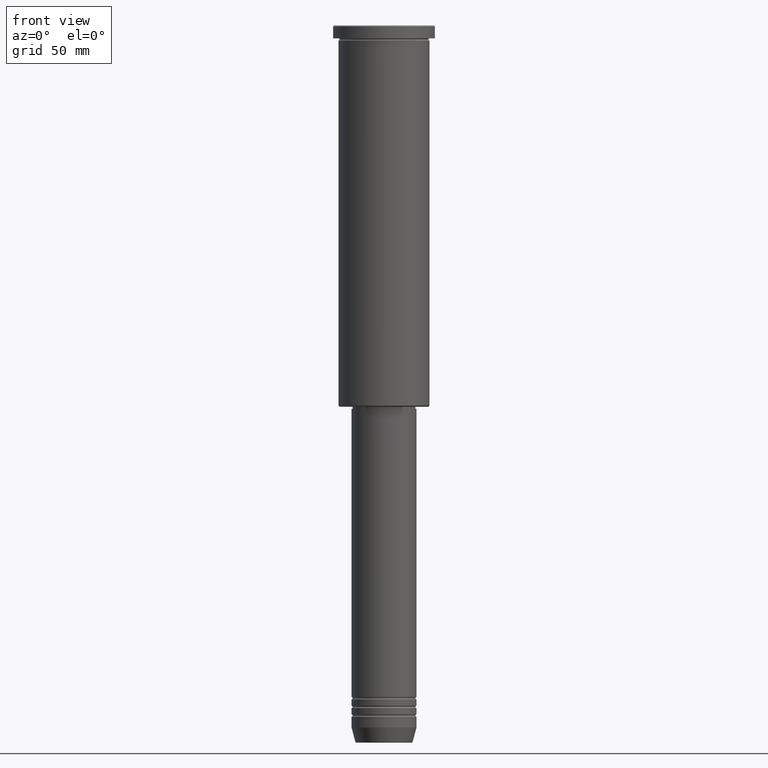
[diagram: clean part render]
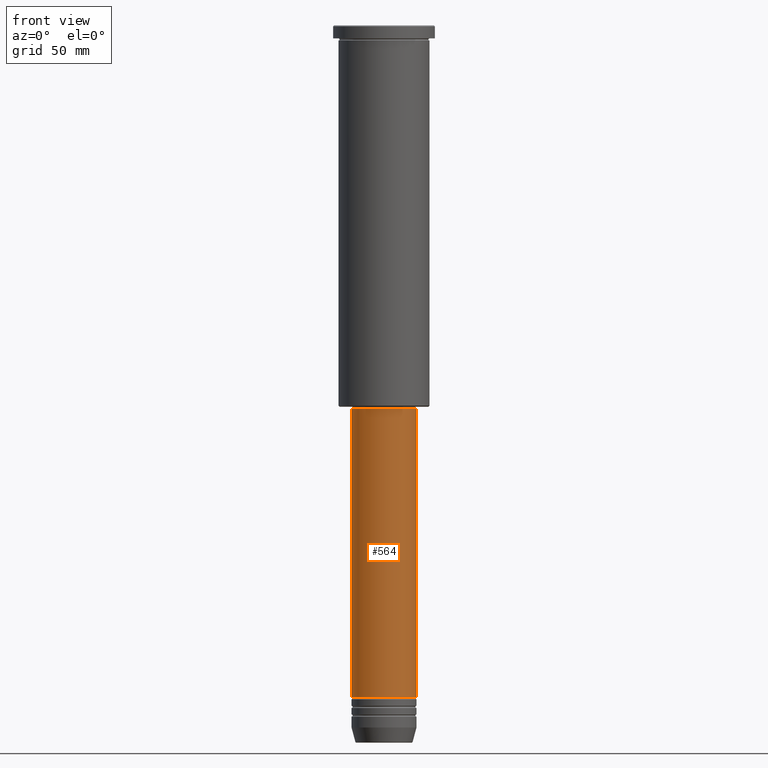
[diagram: same view with one face highlighted and labeled with its STEP entity id]
A machine part, front view. The second image highlights one B-rep face of the part: STEP entity #564.
In plain terms, the highlighted cylindrical surface (edge-blend (fillet) strip) has radius 15 mm, axis along (-0, -0, 1).
Its self-contained STEP definition (entity closure, byte-faithful):
#35 = FACE_OUTER_BOUND ( 'NONE', #1125, .T. ) ;
#64 = VERTEX_POINT ( 'NONE', #867 ) ;
#68 = CIRCLE ( 'NONE', #570, 15.00000000000000000 ) ;
#87 = EDGE_CURVE ( 'NONE', #1027, #64, #1171, .T. ) ;
#103 = EDGE_CURVE ( 'NONE', #692, #1027, #328, .T. ) ;
#116 = ORIENTED_EDGE ( 'NONE', *, *, #582, .T. ) ;
#123 = VECTOR ( 'NONE', #584, 1000.000000000000000 ) ;
#158 = CYLINDRICAL_SURFACE ( 'NONE', #203, 15.00000000000000000 ) ;
#203 = AXIS2_PLACEMENT_3D ( 'NONE', #1053, #398, #302 ) ;
#213 = CARTESIAN_POINT ( 'NONE',  ( 0.000000000000000000, 0.000000000000000000, -176.9999999999999432 ) ) ;
#214 = ORIENTED_EDGE ( 'NONE', *, *, #87, .F. ) ;
#229 = VECTOR ( 'NONE', #1054, 1000.000000000000000 ) ;
#247 = CARTESIAN_POINT ( 'NONE',  ( 0.000000000000000000, 0.000000000000000000, -309.9999999999999432 ) ) ;
#302 = DIRECTION ( 'NONE',  ( 1.000000000000000000, 0.000000000000000000, 0.000000000000000000 ) ) ;
#304 = CARTESIAN_POINT ( 'NONE',  ( 15.00000000000000000, 0.000000000000000000, 0.000000000000000000 ) ) ;
#328 = LINE ( 'NONE', #881, #229 ) ;
#338 = DIRECTION ( 'NONE',  ( 1.000000000000000000, 0.000000000000000000, 0.000000000000000000 ) ) ;
#398 = DIRECTION ( 'NONE',  ( -0.000000000000000000, -0.000000000000000000, 1.000000000000000000 ) ) ;
#399 = LINE ( 'NONE', #304, #123 ) ;
#523 = CARTESIAN_POINT ( 'NONE',  ( 15.00000000000000000, 0.000000000000000000, -309.9999999999999432 ) ) ;
#564 = ADVANCED_FACE ( 'NONE', ( #35 ), #158, .T. ) ;
#570 = AXIS2_PLACEMENT_3D ( 'NONE', #247, #795, #338 ) ;
#582 = EDGE_CURVE ( 'NONE', #692, #1153, #68, .T. ) ;
#584 = DIRECTION ( 'NONE',  ( -0.000000000000000000, -0.000000000000000000, 1.000000000000000000 ) ) ;
#586 = DIRECTION ( 'NONE',  ( -0.000000000000000000, -0.000000000000000000, 1.000000000000000000 ) ) ;
#595 = DIRECTION ( 'NONE',  ( 1.000000000000000000, 0.000000000000000000, 0.000000000000000000 ) ) ;
#597 = AXIS2_PLACEMENT_3D ( 'NONE', #213, #586, #595 ) ;
#634 = CARTESIAN_POINT ( 'NONE',  ( -15.00000000000000000, 1.836970198721029589E-15, -176.9999999999999432 ) ) ;
#692 = VERTEX_POINT ( 'NONE', #1032 ) ;
#700 = ORIENTED_EDGE ( 'NONE', *, *, #103, .F. ) ;
#795 = DIRECTION ( 'NONE',  ( -0.000000000000000000, -0.000000000000000000, 1.000000000000000000 ) ) ;
#867 = CARTESIAN_POINT ( 'NONE',  ( 15.00000000000000000, 0.000000000000000000, -176.9999999999999432 ) ) ;
#881 = CARTESIAN_POINT ( 'NONE',  ( -15.00000000000000000, 1.836970198721029589E-15, 0.000000000000000000 ) ) ;
#1027 = VERTEX_POINT ( 'NONE', #634 ) ;
#1032 = CARTESIAN_POINT ( 'NONE',  ( -15.00000000000000000, 1.836970198721029589E-15, -309.9999999999999432 ) ) ;
#1053 = CARTESIAN_POINT ( 'NONE',  ( 0.000000000000000000, 0.000000000000000000, 0.000000000000000000 ) ) ;
#1054 = DIRECTION ( 'NONE',  ( -0.000000000000000000, -0.000000000000000000, 1.000000000000000000 ) ) ;
#1077 = EDGE_CURVE ( 'NONE', #1153, #64, #399, .T. ) ;
#1125 = EDGE_LOOP ( 'NONE', ( #700, #116, #1142, #214 ) ) ;
#1142 = ORIENTED_EDGE ( 'NONE', *, *, #1077, .T. ) ;
#1153 = VERTEX_POINT ( 'NONE', #523 ) ;
#1171 = CIRCLE ( 'NONE', #597, 15.00000000000000000 ) ;